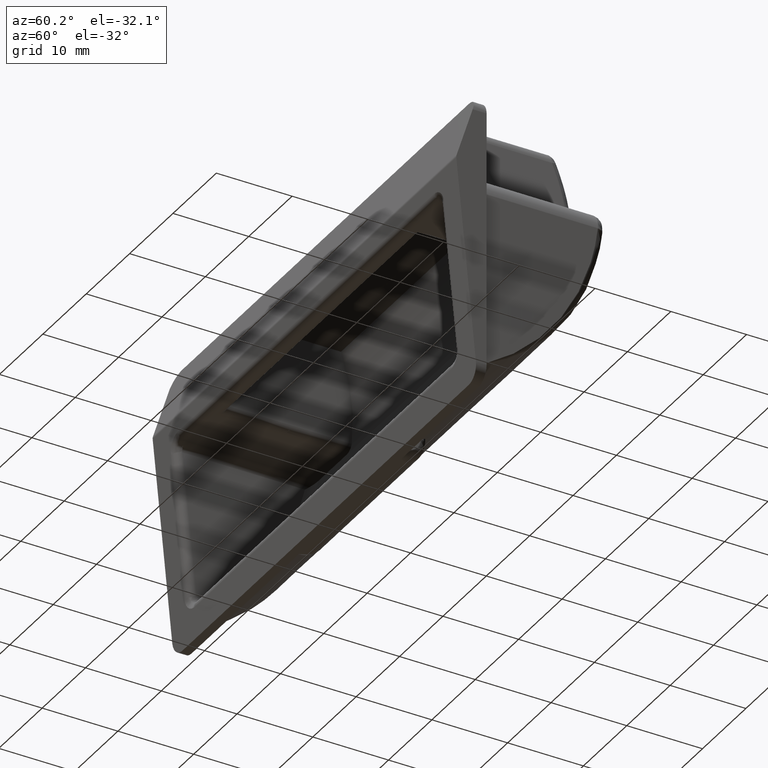
[diagram: clean part render]
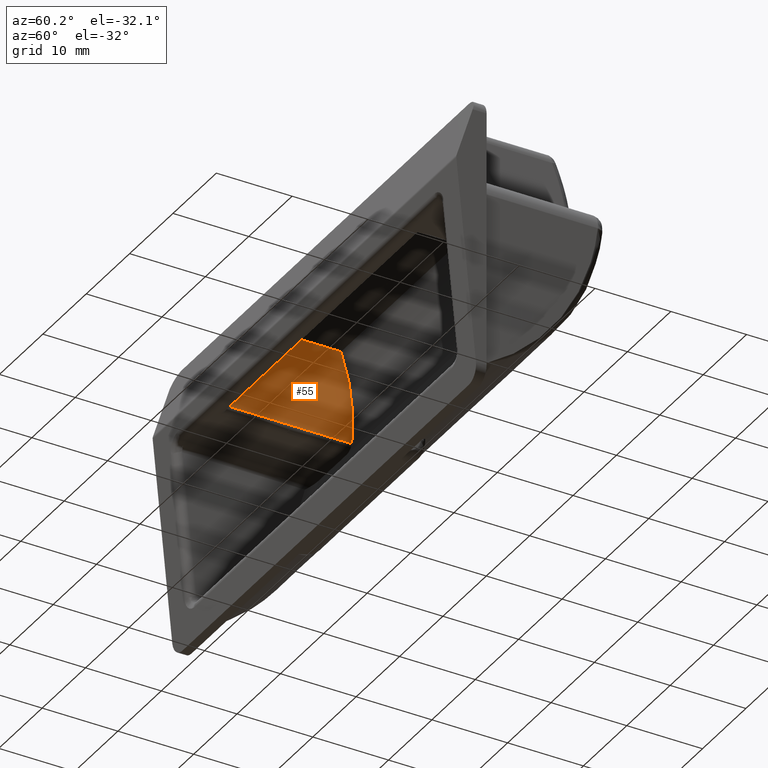
[diagram: same view with one face highlighted and labeled with its STEP entity id]
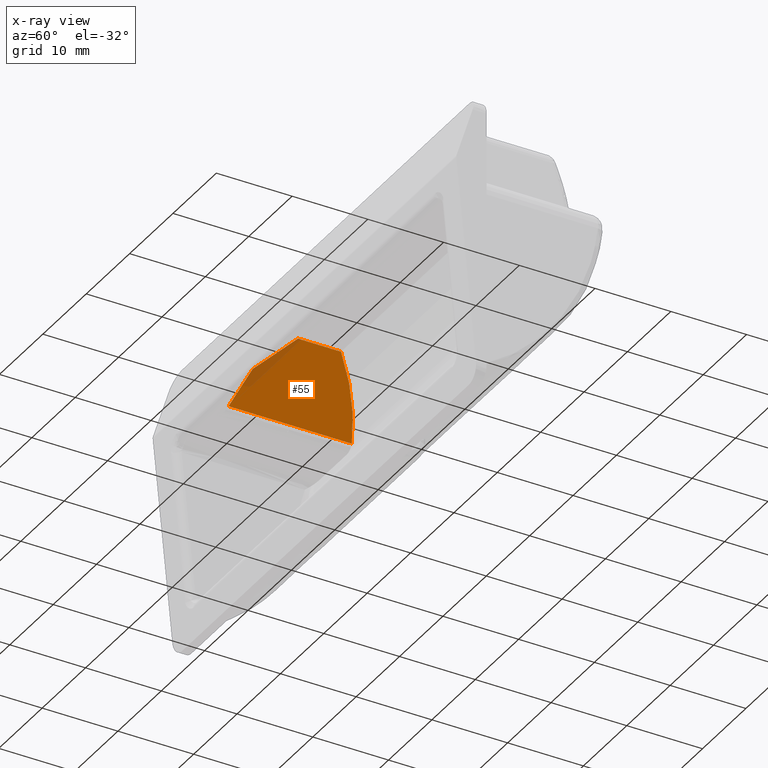
[diagram: x-ray of the same camera — body ghosted, the highlighted face saturated]
A machine part, auxiliary view. The second image highlights one B-rep face of the part: STEP entity #55.
The next image is the same camera in x-ray: the body ghosted, the highlighted face saturated — about 7% of this face is hidden behind the body in this view.
In plain terms, the highlighted face is a freeform B-spline surface patch.
Its self-contained STEP definition (entity closure, byte-faithful):
#5=CARTESIAN_POINT('',(-22.0,-2.249519139192466,19.849399976741669));
#6=CARTESIAN_POINT('',(-22.0,15.820547579737450,19.849399976741669));
#7=CARTESIAN_POINT('',(-22.0,-2.249519139192466,6.650599701393246));
#8=CARTESIAN_POINT('',(-22.0,15.820547579737450,6.650599701393246));
#9=B_SPLINE_SURFACE_WITH_KNOTS('',1,1,((#5,#7),(#6,#8)),.UNSPECIFIED.,.F.,.F.,.U.,(2,2),(2,2),(0.0,18.070066718929919),(0.0,13.198800275348431),.UNSPECIFIED.);
#10=CARTESIAN_POINT('',(-22.0,1.749999999999800,13.250000000000000));
#11=VERTEX_POINT('',#10);
#12=CARTESIAN_POINT('',(-22.0,-1.428899283970614,7.250000000000000));
#13=VERTEX_POINT('',#12);
#14=CARTESIAN_POINT('',(-22.0,1.749999999999800,13.250000000000000));
#15=CARTESIAN_POINT('',(-22.0,-1.428899283970614,7.250000000000000));
#16=QUASI_UNIFORM_CURVE('',1,(#14,#15),.UNSPECIFIED.,.F.,.U.);
#17=EDGE_CURVE('',#11,#13,#16,.T.);
#18=ORIENTED_EDGE('',*,*,#17,.T.);
#19=CARTESIAN_POINT('',(-22.0,14.843725627225140,7.250000000000000));
#20=VERTEX_POINT('',#19);
#21=CARTESIAN_POINT('',(-22.0,-1.428899283970614,7.250000000000000));
#22=CARTESIAN_POINT('',(-22.0,14.843725627225140,7.250000000000000));
#23=QUASI_UNIFORM_CURVE('',1,(#21,#22),.UNSPECIFIED.,.F.,.U.);
#24=EDGE_CURVE('',#13,#20,#23,.T.);
#25=ORIENTED_EDGE('',*,*,#24,.T.);
#26=CARTESIAN_POINT('',(-22.0,13.420538686405900,19.250000000000000));
#27=VERTEX_POINT('',#26);
#28=CARTESIAN_POINT('',(-22.0,14.843725627225149,7.249999999999993));
#29=CARTESIAN_POINT('',(-22.0,15.509746497044967,13.413383561541638));
#30=CARTESIAN_POINT('',(-22.0,13.420538686405900,19.249999999999979));
#38=(BOUNDED_CURVE()B_SPLINE_CURVE(2,(#28,#29,#30),.UNSPECIFIED.,.F.,.U.)CURVE()GEOMETRIC_REPRESENTATION_ITEM()QUASI_UNIFORM_CURVE()RATIONAL_B_SPLINE_CURVE((1.0,0.974639770063482,1.0))REPRESENTATION_ITEM(''));
#39=EDGE_CURVE('',#20,#27,#38,.T.);
#40=ORIENTED_EDGE('',*,*,#39,.T.);
#41=CARTESIAN_POINT('',(-22.0,7.749999999999799,19.250000000000000));
#42=VERTEX_POINT('',#41);
#43=CARTESIAN_POINT('',(-22.0,13.420538686405900,19.250000000000000));
#44=CARTESIAN_POINT('',(-22.0,7.749999999999799,19.250000000000000));
#45=QUASI_UNIFORM_CURVE('',1,(#43,#44),.UNSPECIFIED.,.F.,.U.);
#46=EDGE_CURVE('',#27,#42,#45,.T.);
#47=ORIENTED_EDGE('',*,*,#46,.T.);
#48=CARTESIAN_POINT('',(-22.0,7.749999999999799,19.250000000000000));
#49=CARTESIAN_POINT('',(-22.0,1.749999999999800,13.250000000000000));
#50=QUASI_UNIFORM_CURVE('',1,(#48,#49),.UNSPECIFIED.,.F.,.U.);
#51=EDGE_CURVE('',#42,#11,#50,.T.);
#52=ORIENTED_EDGE('',*,*,#51,.T.);
#53=EDGE_LOOP('',(#18,#25,#40,#47,#52));
#54=FACE_OUTER_BOUND('',#53,.T.);
#55=ADVANCED_FACE('',(#54),#9,.F.);